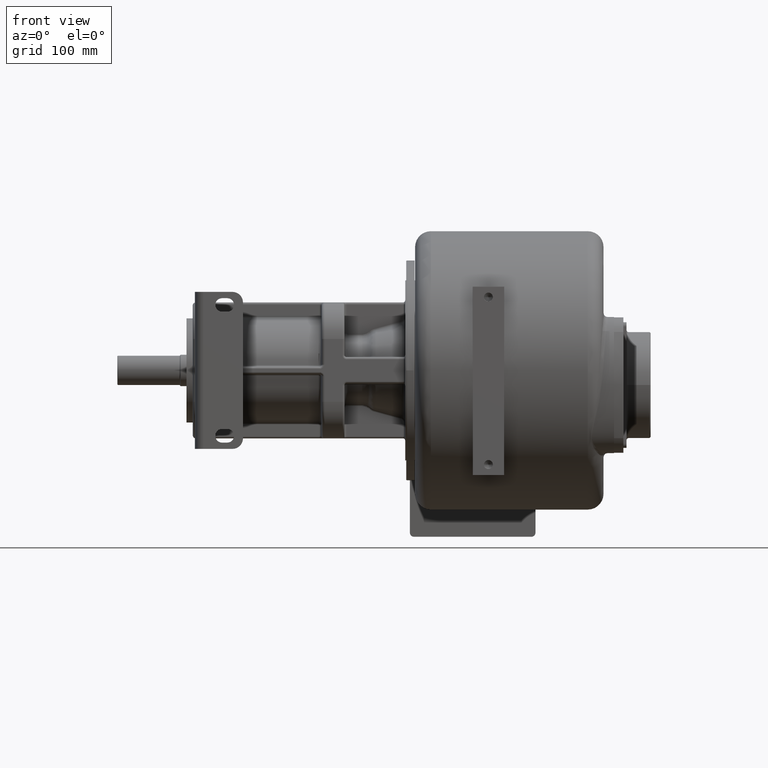
[diagram: clean part render]
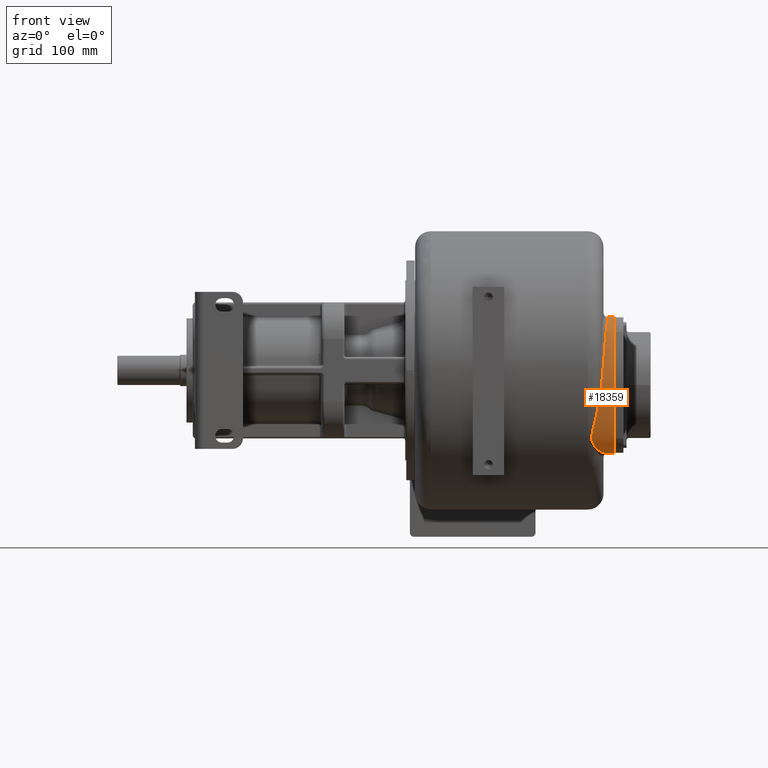
[diagram: same view with one face highlighted and labeled with its STEP entity id]
A machine part, front view. The second image highlights one B-rep face of the part: STEP entity #18359.
In plain terms, the highlighted face is a SurfaceOfExtrusion surface.
Its self-contained STEP definition (entity closure, byte-faithful):
#4682=CARTESIAN_POINT('',(1.2E2,3.218037578433E1,5.015569962316E1));
#4683=CARTESIAN_POINT('',(1.2E2,2.957617511504E1,4.923728966840E1));
#4684=CARTESIAN_POINT('',(1.2E2,2.555596911453E1,4.647559599657E1));
#4685=CARTESIAN_POINT('',(1.2E2,2.093649954514E1,4.123487884135E1));
#4686=CARTESIAN_POINT('',(1.2E2,1.726361694161E1,3.525735232455E1));
#4687=CARTESIAN_POINT('',(1.2E2,1.328126092466E1,2.657523393274E1));
#4688=CARTESIAN_POINT('',(1.2E2,9.706547018802E0,1.463033149671E1));
#4689=CARTESIAN_POINT('',(1.2E2,8.073249208342E0,4.119740772345E0));
#4690=CARTESIAN_POINT('',(1.2E2,7.570852276010E0,-1.380163700117E0));
#4692=CARTESIAN_POINT('',(1.2E2,7.170847433592E0,-2.092712073769E1));
#4693=CARTESIAN_POINT('',(1.2E2,7.473894972336E0,-2.705320721461E1));
#4694=CARTESIAN_POINT('',(1.2E2,8.849423613397E0,-3.872541723827E1));
#4695=CARTESIAN_POINT('',(1.2E2,1.234527162929E1,-5.197668471875E1));
#4696=CARTESIAN_POINT('',(1.2E2,1.640497207669E1,-6.162569193503E1));
#4697=CARTESIAN_POINT('',(1.2E2,2.022969092683E1,-6.827456250896E1));
#4698=CARTESIAN_POINT('',(1.2E2,2.427715916329E1,-7.316690766915E1));
#4699=CARTESIAN_POINT('',(1.2E2,2.839189798914E1,-7.641992004003E1));
#4700=CARTESIAN_POINT('',(1.2E2,3.088753227394E1,-7.771608272174E1));
#4701=CARTESIAN_POINT('',(1.2E2,3.233896815663E1,-7.821068580683E1));
#4703=CARTESIAN_POINT('',(1.139999999927E2,3.032319457221E1,4.936962690440E1));
#4704=CARTESIAN_POINT('',(1.140000573509E2,3.015512157145E1,4.928646864826E1));
#4705=CARTESIAN_POINT('',(1.139976415600E2,2.981468088584E1,4.911166264318E1));
#4706=CARTESIAN_POINT('',(1.139838911840E2,2.929219500877E1,4.882171517729E1));
#4707=CARTESIAN_POINT('',(1.139613735594E2,2.875719641352E1,4.850230259269E1));
#4708=CARTESIAN_POINT('',(1.139299867734E2,2.820973664925E1,4.815135262163E1));
#4709=CARTESIAN_POINT('',(1.138903507360E2,2.764993167640E1,4.776689157010E1));
#4710=CARTESIAN_POINT('',(1.138426986268E2,2.707796008995E1,4.734682759412E1));
#4711=CARTESIAN_POINT('',(1.137869282554E2,2.649411246159E1,4.688905540804E1));
#4712=CARTESIAN_POINT('',(1.137231233011E2,2.589838940526E1,4.639110669711E1));
#4713=CARTESIAN_POINT('',(1.136514813990E2,2.529072107336E1,4.585025197945E1));
#4714=CARTESIAN_POINT('',(1.135723717736E2,2.467124833475E1,4.526372212522E1));
#4715=CARTESIAN_POINT('',(1.134866033038E2,2.404076620852E1,4.462920570342E1));
#4716=CARTESIAN_POINT('',(1.133947531989E2,2.340036039718E1,4.394463292568E1));
#4717=CARTESIAN_POINT('',(1.132969137966E2,2.275103904367E1,4.320783469270E1));
#4718=CARTESIAN_POINT('',(1.131933063273E2,2.209309310087E1,4.241569288463E1));
#4719=CARTESIAN_POINT('',(1.130842593262E2,2.142696797952E1,4.156498377977E1));
#4720=CARTESIAN_POINT('',(1.129703679479E2,2.075350821752E1,4.065273721815E1));
#4721=CARTESIAN_POINT('',(1.128523970719E2,2.007406123988E1,3.967651056368E1));
#4722=CARTESIAN_POINT('',(1.127304776990E2,1.938979342937E1,3.863350639906E1));
#4723=CARTESIAN_POINT('',(1.126047681933E2,1.870132858705E1,3.751982638737E1));
#4724=CARTESIAN_POINT('',(1.124754686659E2,1.800938882800E1,3.633123904704E1));
#4725=CARTESIAN_POINT('',(1.123430824145E2,1.731560940740E1,3.506466090393E1));
#4726=CARTESIAN_POINT('',(1.122080977710E2,1.662221497143E1,3.371797065842E1));
#4727=CARTESIAN_POINT('',(1.120705025504E2,1.593088876143E1,3.228789194191E1));
#4728=CARTESIAN_POINT('',(1.119302302009E2,1.524293785707E1,3.076988114052E1));
#4729=CARTESIAN_POINT('',(1.117872998989E2,1.456050034947E1,2.916055050812E1));
#4730=CARTESIAN_POINT('',(1.116420824161E2,1.388760613235E1,2.746105126964E1));
#4731=CARTESIAN_POINT('',(1.114944562805E2,1.322740733209E1,2.567102500631E1));
#4732=CARTESIAN_POINT('',(1.113440037102E2,1.258235693182E1,2.378818830922E1));
#4733=CARTESIAN_POINT('',(1.111901872242E2,1.195517291242E1,2.181067561803E1));
#4734=CARTESIAN_POINT('',(1.110322448511E2,1.134851107394E1,1.973601409018E1));
#4735=CARTESIAN_POINT('',(1.108693513278E2,1.076571960131E1,1.756353065594E1));
#4736=CARTESIAN_POINT('',(1.107008438377E2,1.021146159864E1,1.529808975820E1));
#4737=CARTESIAN_POINT('',(1.105257453707E2,9.689807948662E0,1.294396625851E1));
#4738=CARTESIAN_POINT('',(1.103427950373E2,9.204451789633E0,1.050501313602E1));
#4739=CARTESIAN_POINT('',(1.101508400766E2,8.759315269826E0,7.987797800162E0));
#4740=CARTESIAN_POINT('',(1.099487539302E2,8.358315792023E0,5.401968738946E0));
#4741=CARTESIAN_POINT('',(1.097352097600E2,8.004648667159E0,2.756692106745E0));
#4742=CARTESIAN_POINT('',(1.095087744515E2,7.700949580041E0,6.090854227819E-2));
#4743=CARTESIAN_POINT('',(1.092682861100E2,7.449546642926E0,-2.674194120251E0));
#4744=CARTESIAN_POINT('',(1.090126838808E2,7.252162040449E0,-5.436533235858E0));
#4745=CARTESIAN_POINT('',(1.087409875553E2,7.109820237158E0,-8.214282588778E0));
#4746=CARTESIAN_POINT('',(1.084524181982E2,7.022896560879E0,-1.099555489003E1));
#4747=CARTESIAN_POINT('',(1.081463094185E2,6.991126099527E0,-1.377002777062E1));
#4748=CARTESIAN_POINT('',(1.078222144571E2,7.013753369251E0,-1.652762057505E1));
#4749=CARTESIAN_POINT('',(1.074800238755E2,7.089517097257E0,-1.925796369957E1));
#4750=CARTESIAN_POINT('',(1.071198242278E2,7.216708840262E0,-2.195227965486E1));
#4751=CARTESIAN_POINT('',(1.067416486346E2,7.393441377211E0,-2.460469727809E1));
#4752=CARTESIAN_POINT('',(1.063458570798E2,7.617587999027E0,-2.720882893340E1));
#4753=CARTESIAN_POINT('',(1.059331030098E2,7.886804775649E0,-2.975894017110E1));
#4754=CARTESIAN_POINT('',(1.055038673874E2,8.199014090935E0,-3.225300789863E1));
#4755=CARTESIAN_POINT('',(1.050587605032E2,8.552139432814E0,-3.468869741651E1));
#4756=CARTESIAN_POINT('',(1.045986095557E2,8.944127533875E0,-3.706404714189E1));
#4757=CARTESIAN_POINT('',(1.041243321235E2,9.373546623235E0,-3.938026642658E1));
#4758=CARTESIAN_POINT('',(1.036367116219E2,9.839107805257E0,-4.163809474038E1));
#4759=CARTESIAN_POINT('',(1.031366304855E2,1.033991823382E1,-4.383903736351E1));
#4760=CARTESIAN_POINT('',(1.026266392757E2,1.087509015593E1,-4.598387487968E1));
#4761=CARTESIAN_POINT('',(1.021066737823E2,1.144589738980E1,-4.807981963846E1));
#4762=CARTESIAN_POINT('',(1.015863781078E2,1.204527145786E1,-5.010346195809E1));
#4763=CARTESIAN_POINT('',(1.010883886066E2,1.265280028802E1,-5.199804360998E1));
#4764=CARTESIAN_POINT('',(1.006331086866E2,1.324207688768E1,-5.370714631516E1));
#4765=CARTESIAN_POINT('',(1.002295002784E2,1.380293610721E1,-5.523174116837E1));
#4766=CARTESIAN_POINT('',(9.987984871334E1,1.433298984848E1,-5.659089230861E1));
#4767=CARTESIAN_POINT('',(9.958194647230E1,1.482938349838E1,-5.779838140824E1));
#4768=CARTESIAN_POINT('',(9.933514692791E1,1.528897096937E1,-5.886439866123E1));
#4769=CARTESIAN_POINT('',(9.914284549373E1,1.570533391051E1,-5.979011884947E1));
#4770=CARTESIAN_POINT('',(9.899713901069E1,1.608283096982E1,-6.059878763563E1));
#4771=CARTESIAN_POINT('',(9.888803561232E1,1.643367869446E1,-6.132567775093E1));
#4772=CARTESIAN_POINT('',(9.880877953627E1,1.676978629731E1,-6.200057576355E1));
#4773=CARTESIAN_POINT('',(9.875642663775E1,1.709230088764E1,-6.262914569739E1));
#4774=CARTESIAN_POINT('',(9.872764323438E1,1.740341194941E1,-6.321855218653E1));
#4775=CARTESIAN_POINT('',(9.872007998990E1,1.770554556846E1,-6.377558244241E1));
#4776=CARTESIAN_POINT('',(9.873206972045E1,1.800101526018E1,-6.430617206507E1));
#4777=CARTESIAN_POINT('',(9.876270971178E1,1.829255927894E1,-6.481642565490E1));
#4778=CARTESIAN_POINT('',(9.881180213086E1,1.858310245870E1,-6.531219521813E1));
#4779=CARTESIAN_POINT('',(9.888042482198E1,1.887645021473E1,-6.580023847514E1));
#4780=CARTESIAN_POINT('',(9.896941223482E1,1.917714634265E1,-6.628782503941E1));
#4781=CARTESIAN_POINT('',(9.907988453446E1,1.948993339469E1,-6.678177780247E1));
#4782=CARTESIAN_POINT('',(9.921423763214E1,1.981986533842E1,-6.728855165720E1));
#4783=CARTESIAN_POINT('',(9.937417369638E1,2.016902877420E1,-6.780934112414E1));
#4784=CARTESIAN_POINT('',(9.956138378216E1,2.053944809485E1,-6.834489766755E1));
#4785=CARTESIAN_POINT('',(9.977774855680E1,2.093346928694E1,-6.889598338981E1));
#4786=CARTESIAN_POINT('',(1.000240893974E2,2.135194844109E1,-6.946088853879E1));
#4787=CARTESIAN_POINT('',(1.003012227190E2,2.179542103002E1,-7.003731333273E1));
#4788=CARTESIAN_POINT('',(1.006097236524E2,2.226450296278E1,-7.062287776841E1));
#4789=CARTESIAN_POINT('',(1.009481022942E2,2.275760121477E1,-7.121245908015E1));
#4790=CARTESIAN_POINT('',(1.013142562509E2,2.327323308181E1,-7.180139768355E1));
#4791=CARTESIAN_POINT('',(1.017049049694E2,2.380937963785E1,-7.238475227425E1));
#4792=CARTESIAN_POINT('',(1.021171525675E2,2.436336225683E1,-7.295735984472E1));
#4793=CARTESIAN_POINT('',(1.025478526314E2,2.493233511998E1,-7.351447595210E1));
#4794=CARTESIAN_POINT('',(1.029932381249E2,2.551306728228E1,-7.405163615010E1));
#4795=CARTESIAN_POINT('',(1.034500518364E2,2.610323231942E1,-7.456583354864E1));
#4796=CARTESIAN_POINT('',(1.039154628072E2,2.670064295360E1,-7.505462692213E1));
#4797=CARTESIAN_POINT('',(1.043863083773E2,2.730272023711E1,-7.551572125673E1));
#4798=CARTESIAN_POINT('',(1.048597461693E2,2.790732486973E1,-7.594764209473E1));
#4799=CARTESIAN_POINT('',(1.053338758462E2,2.851342466344E1,-7.634999863190E1));
#4800=CARTESIAN_POINT('',(1.058066871373E2,2.911968394332E1,-7.672236330706E1));
#4801=CARTESIAN_POINT('',(1.062762664849E2,2.972482936438E1,-7.706456102054E1));
#4802=CARTESIAN_POINT('',(1.067408148054E2,3.032776950233E1,-7.737669194760E1));
#4803=CARTESIAN_POINT('',(1.071985286781E2,3.092735273510E1,-7.765897598078E1));
#4804=CARTESIAN_POINT('',(1.076477182434E2,3.152240941559E1,-7.791178255064E1));
#4805=CARTESIAN_POINT('',(1.080866730190E2,3.211181301314E1,-7.813564911691E1));
#4806=CARTESIAN_POINT('',(1.085137216630E2,3.269439214247E1,-7.833123878855E1));
#4807=CARTESIAN_POINT('',(1.089274095255E2,3.326900356343E1,-7.849936951565E1));
#4808=CARTESIAN_POINT('',(1.093263784437E2,3.383469665342E1,-7.864103475914E1));
#4809=CARTESIAN_POINT('',(1.097093220219E2,3.439038546907E1,-7.875730070831E1));
#4810=CARTESIAN_POINT('',(1.100754050286E2,3.493534031030E1,-7.884941004973E1));
#4811=CARTESIAN_POINT('',(1.104240646054E2,3.546929517788E1,-7.891870702599E1));
#4812=CARTESIAN_POINT('',(1.107548621867E2,3.599190303485E1,-7.896651176283E1));
#4813=CARTESIAN_POINT('',(1.110675852791E2,3.650291958067E1,-7.899414895740E1));
#4814=CARTESIAN_POINT('',(1.112638423805E2,3.683564037425E1,-7.899999858317E1));
#4815=CARTESIAN_POINT('',(1.113589253550E2,3.7E1,-7.899999897986E1));
#4817=CARTESIAN_POINT('',(1.14E2,3.700000000742E1,5.099998336206E1));
#4818=CARTESIAN_POINT('',(1.14E2,3.475558840417E1,5.099998336206E1));
#4819=CARTESIAN_POINT('',(1.139999999927E2,3.251131327003E1,5.045191975771E1));
#4820=CARTESIAN_POINT('',(1.139999999927E2,3.032319457221E1,4.936962690440E1));
#4822=DIRECTION('',(-9.999999999962E-1,1.237336751572E-9,-2.772990391964E-6));
#4823=VECTOR('',#4822,6.000000000023E0);
#4824=CARTESIAN_POINT('',(1.2E2,3.7E1,5.1E1));
#4825=LINE('',#4824,#4823);
#4852=CARTESIAN_POINT('',(1.2E2,1.47E2,-1.401E1));
#4853=DIRECTION('',(-1.E0,0.E0,0.E0));
#4854=DIRECTION('',(0.E0,-9.987786865683E-1,-4.940784610670E-2));
#4855=AXIS2_PLACEMENT_3D('',#4852,#4853,#4854);
#5060=DIRECTION('',(-1.E0,3.206912083619E-14,1.180575395812E-7));
#5061=VECTOR('',#5060,8.641074645045E0);
#5062=CARTESIAN_POINT('',(1.2E2,3.7E1,-7.9E1));
#5063=LINE('',#5062,#5061);
#5089=CARTESIAN_POINT('',(1.2E2,3.7E1,5.1E1));
#5090=CARTESIAN_POINT('',(1.2E2,3.534528668704E1,5.1E1));
#5091=CARTESIAN_POINT('',(1.2E2,3.374088974593E1,5.070603799523E1));
#5092=CARTESIAN_POINT('',(1.2E2,3.218037578433E1,5.015569962316E1));
#5109=CARTESIAN_POINT('',(1.2E2,3.233896815663E1,-7.821068580683E1));
#5110=CARTESIAN_POINT('',(1.2E2,3.385087049394E1,-7.872589393233E1));
#5111=CARTESIAN_POINT('',(1.2E2,3.540272479199E1,-7.9E1));
#5112=CARTESIAN_POINT('',(1.2E2,3.7E1,-7.9E1));
#10356=CARTESIAN_POINT('',(1.2E2,3.7E1,5.1E1));
#10357=CARTESIAN_POINT('',(1.14E2,3.700000000742E1,5.099998336206E1));
#10358=VERTEX_POINT('',#10356);
#10359=VERTEX_POINT('',#10357);
#10372=CARTESIAN_POINT('',(1.2E2,3.7E1,-7.9E1));
#10373=CARTESIAN_POINT('',(1.113589253550E2,3.7E1,-7.899999897986E1));
#10374=VERTEX_POINT('',#10372);
#10375=VERTEX_POINT('',#10373);
#10382=VERTEX_POINT('',#4820);
#10854=CARTESIAN_POINT('',(1.2E2,3.218037578433E1,5.015569962316E1));
#10856=VERTEX_POINT('',#10854);
#10857=CARTESIAN_POINT('',(1.2E2,3.233896815663E1,-7.821068580683E1));
#10859=VERTEX_POINT('',#10857);
#10873=VERTEX_POINT('',#4692);
#10882=CARTESIAN_POINT('',(1.2E2,7.570852276010E0,-1.380163700117E0));
#10883=VERTEX_POINT('',#10882);
#18333=CARTESIAN_POINT('',(1.2E2,3.7E1,-1.4E1));
#18334=DIRECTION('',(1.E0,0.E0,0.E0));
#18335=DIRECTION('',(0.E0,0.E0,-1.E0));
#18336=AXIS2_PLACEMENT_3D('',#18333,#18334,#18335);
#18338=DIRECTION('',(1.E0,0.E0,0.E0));
#18339=VECTOR('',#18338,1.E0);
#18340=SURFACE_OF_LINEAR_EXTRUSION('',#18337,#18339);
#18342=ORIENTED_EDGE('',*,*,#18341,.T.);
#18344=ORIENTED_EDGE('',*,*,#18343,.F.);
#18346=ORIENTED_EDGE('',*,*,#18345,.T.);
#18348=ORIENTED_EDGE('',*,*,#18347,.T.);
#18350=ORIENTED_EDGE('',*,*,#18349,.T.);
#18351=ORIENTED_EDGE('',*,*,#18327,.F.);
#18352=ORIENTED_EDGE('',*,*,#17488,.F.);
#18354=ORIENTED_EDGE('',*,*,#18353,.F.);
#18356=ORIENTED_EDGE('',*,*,#18355,.T.);
#18357=EDGE_LOOP('',(#18342,#18344,#18346,#18348,#18350,#18351,#18352,#18354,
#18356));
#18358=FACE_OUTER_BOUND('',#18357,.F.);
#18359=ADVANCED_FACE('',(#18358),#18340,.T.);
#4691=B_SPLINE_CURVE_WITH_KNOTS('',3,(#4682,#4683,#4684,#4685,#4686,#4687,#4688,
#4689,#4690),.UNSPECIFIED.,.F.,.F.,(4,1,1,1,1,1,4),(0.E0,1.25E-1,2.5E-1,3.75E-1,
5.E-1,7.5E-1,1.E0),.UNSPECIFIED.);
#4702=B_SPLINE_CURVE_WITH_KNOTS('',3,(#4692,#4693,#4694,#4695,#4696,#4697,#4698,
#4699,#4700,#4701),.UNSPECIFIED.,.F.,.F.,(4,1,1,1,1,1,1,4),(0.E0,2.5E-1,5.E-1,
6.25E-1,7.5E-1,8.75E-1,9.375E-1,1.E0),.UNSPECIFIED.);
#4816=B_SPLINE_CURVE_WITH_KNOTS('',3,(#4703,#4704,#4705,#4706,#4707,#4708,#4709,
#4710,#4711,#4712,#4713,#4714,#4715,#4716,#4717,#4718,#4719,#4720,#4721,#4722,
#4723,#4724,#4725,#4726,#4727,#4728,#4729,#4730,#4731,#4732,#4733,#4734,#4735,
#4736,#4737,#4738,#4739,#4740,#4741,#4742,#4743,#4744,#4745,#4746,#4747,#4748,
#4749,#4750,#4751,#4752,#4753,#4754,#4755,#4756,#4757,#4758,#4759,#4760,#4761,
#4762,#4763,#4764,#4765,#4766,#4767,#4768,#4769,#4770,#4771,#4772,#4773,#4774,
#4775,#4776,#4777,#4778,#4779,#4780,#4781,#4782,#4783,#4784,#4785,#4786,#4787,
#4788,#4789,#4790,#4791,#4792,#4793,#4794,#4795,#4796,#4797,#4798,#4799,#4800,
#4801,#4802,#4803,#4804,#4805,#4806,#4807,#4808,#4809,#4810,#4811,#4812,#4813,
#4814,#4815),.UNSPECIFIED.,.F.,.F.,(4,1,1,1,1,1,1,1,1,1,1,1,1,1,1,1,1,1,1,1,1,1,
1,1,1,1,1,1,1,1,1,1,1,1,1,1,1,1,1,1,1,1,1,1,1,1,1,1,1,1,1,1,1,1,1,1,1,1,1,1,1,1,
1,1,1,1,1,1,1,1,1,1,1,1,1,1,1,1,1,1,1,1,1,1,1,1,1,1,1,1,1,1,1,1,1,1,1,1,1,1,1,1,
1,1,1,1,1,1,1,1,4),(0.E0,9.090909090909E-3,1.818181818182E-2,2.727272727273E-2,
3.636363636364E-2,4.545454545455E-2,5.454545454545E-2,6.363636363636E-2,
7.272727272727E-2,8.181818181818E-2,9.090909090909E-2,1.E-1,1.090909090909E-1,
1.181818181818E-1,1.272727272727E-1,1.363636363636E-1,1.454545454545E-1,
1.545454545455E-1,1.636363636364E-1,1.727272727273E-1,1.818181818182E-1,
1.909090909091E-1,2.E-1,2.090909090909E-1,2.181818181818E-1,2.272727272727E-1,
2.363636363636E-1,2.454545454545E-1,2.545454545455E-1,2.636363636364E-1,
2.727272727273E-1,2.818181818182E-1,2.909090909091E-1,3.E-1,3.090909090909E-1,
3.181818181818E-1,3.272727272727E-1,3.363636363636E-1,3.454545454545E-1,
3.545454545455E-1,3.636363636364E-1,3.727272727273E-1,3.818181818182E-1,
3.909090909091E-1,4.E-1,4.090909090909E-1,4.181818181818E-1,4.272727272727E-1,
4.363636363636E-1,4.454545454545E-1,4.545454545455E-1,4.636363636364E-1,
4.727272727273E-1,4.818181818182E-1,4.909090909091E-1,5.E-1,5.090909090909E-1,
5.181818181818E-1,5.272727272727E-1,5.363636363636E-1,5.454545454545E-1,
5.545454545455E-1,5.636363636364E-1,5.727272727273E-1,5.818181818182E-1,
5.909090909091E-1,6.E-1,6.090909090909E-1,6.181818181818E-1,6.272727272727E-1,
6.363636363636E-1,6.454545454545E-1,6.545454545455E-1,6.636363636364E-1,
6.727272727273E-1,6.818181818182E-1,6.909090909091E-1,7.E-1,7.090909090909E-1,
7.181818181818E-1,7.272727272727E-1,7.363636363636E-1,7.454545454545E-1,
7.545454545455E-1,7.636363636364E-1,7.727272727273E-1,7.818181818182E-1,
7.909090909091E-1,8.E-1,8.090909090909E-1,8.181818181818E-1,8.272727272727E-1,
8.363636363636E-1,8.454545454545E-1,8.545454545455E-1,8.636363636364E-1,
8.727272727273E-1,8.818181818182E-1,8.909090909091E-1,9.E-1,9.090909090909E-1,
9.181818181818E-1,9.272727272727E-1,9.363636363636E-1,9.454545454545E-1,
9.545454545455E-1,9.636363636364E-1,9.727272727273E-1,9.818181818182E-1,
9.909090909091E-1,1.E0),.UNSPECIFIED.);
#4821=B_SPLINE_CURVE_WITH_KNOTS('',3,(#4817,#4818,#4819,#4820),.UNSPECIFIED.,
.F.,.F.,(4,4),(0.E0,1.E0),.UNSPECIFIED.);
#4856=CIRCLE('',#4855,1.4E2);
#5093=B_SPLINE_CURVE_WITH_KNOTS('',3,(#5089,#5090,#5091,#5092),.UNSPECIFIED.,
.F.,.F.,(4,4),(0.E0,1.E0),.UNSPECIFIED.);
#5113=B_SPLINE_CURVE_WITH_KNOTS('',3,(#5109,#5110,#5111,#5112),.UNSPECIFIED.,
.F.,.F.,(4,4),(0.E0,1.E0),.UNSPECIFIED.);
#17488=EDGE_CURVE('',#10359,#10382,#4821,.T.);
#18327=EDGE_CURVE('',#10382,#10375,#4816,.T.);
#18337=ELLIPSE('',#18336,6.5E1,3.E1);
#18341=EDGE_CURVE('',#10856,#10883,#4691,.T.);
#18343=EDGE_CURVE('',#10873,#10883,#4856,.T.);
#18345=EDGE_CURVE('',#10873,#10859,#4702,.T.);
#18347=EDGE_CURVE('',#10859,#10374,#5113,.T.);
#18349=EDGE_CURVE('',#10374,#10375,#5063,.T.);
#18353=EDGE_CURVE('',#10358,#10359,#4825,.T.);
#18355=EDGE_CURVE('',#10358,#10856,#5093,.T.);